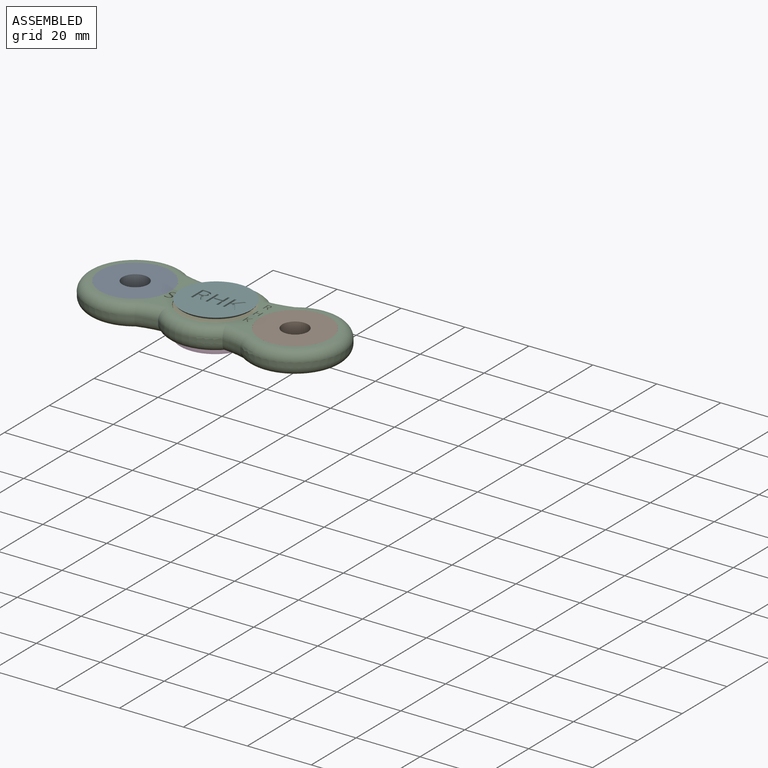
[diagram: assembled view]
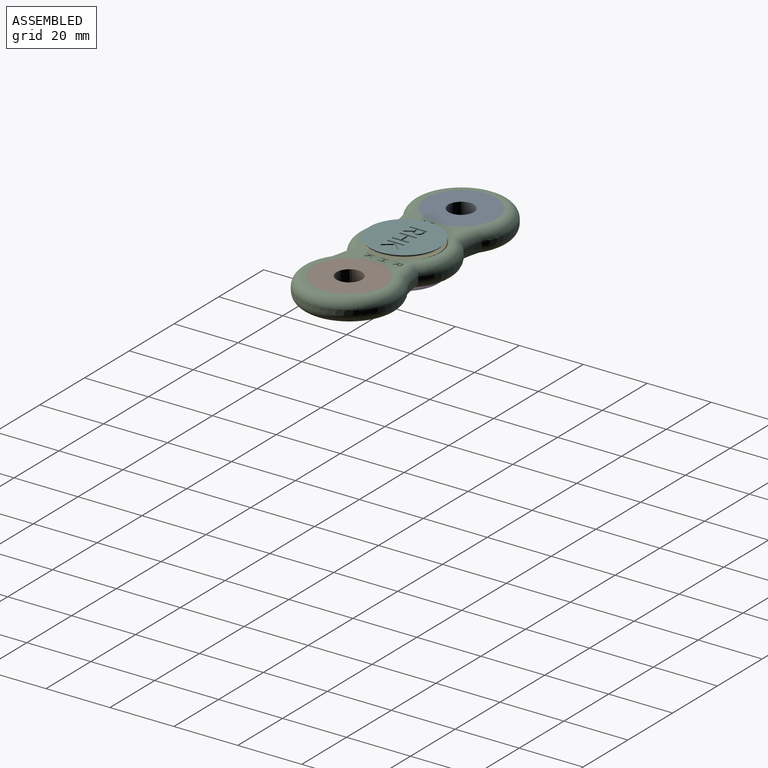
[diagram: assembled view, second angle]
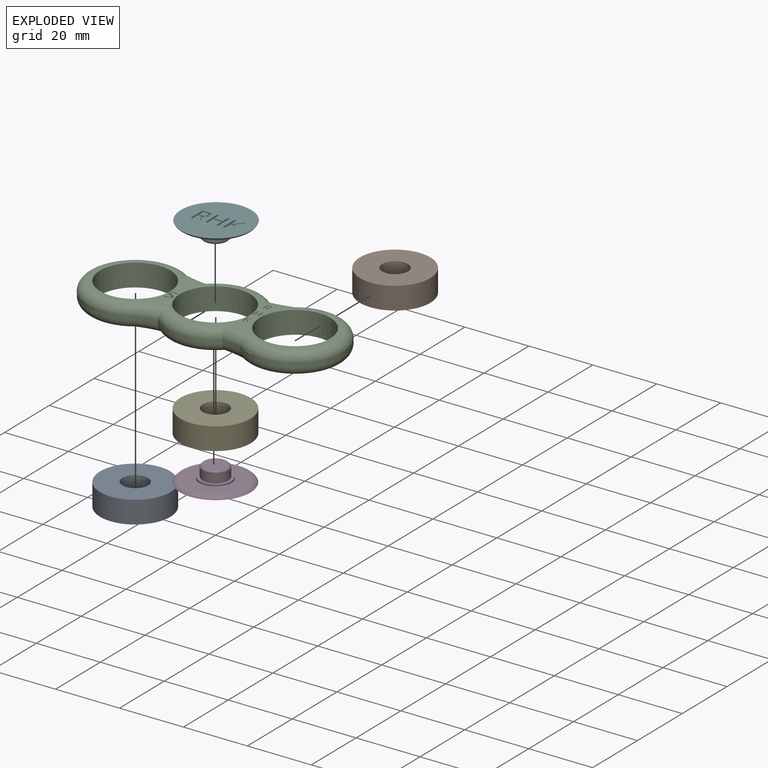
[diagram: exploded view]
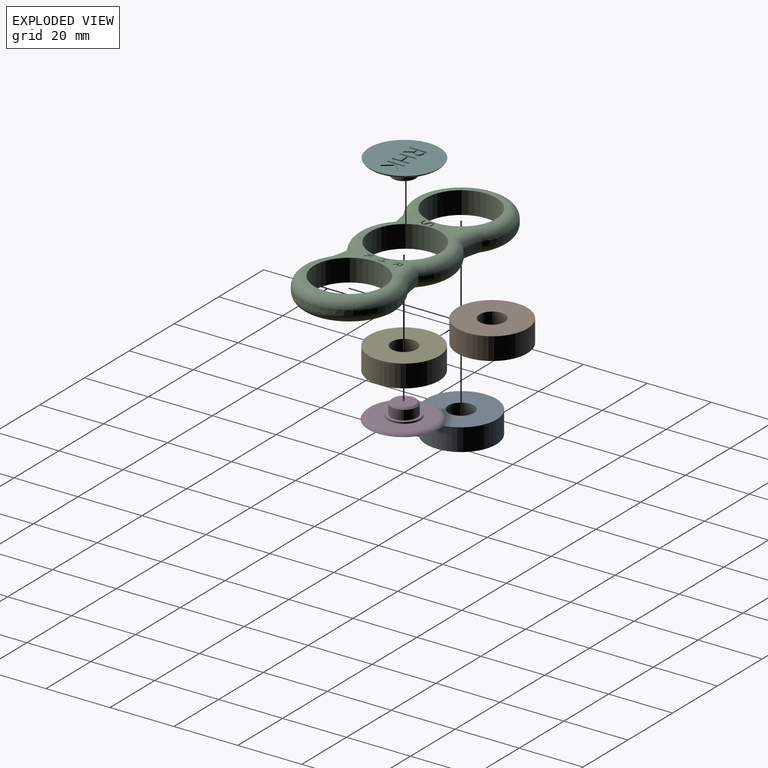
[diagram: exploded view, second angle]
ASSEMBLY  parts=6 mates=4
PART A: 4 faces, bbox 22x22x7 mm
  f0: cylinder r=4mm len=8mm, axis (0,0,-1), area 175.9mm2, adj f2,f3
  f1: cylinder r=11mm len=22mm, axis (0,0,-1), area 483.8mm2, adj f2,f3
  f2: plane 22x22mm, normal (0,0,1), area 329.9mm2, adj f0,f1
  f3: plane 22x22mm, normal (0,0,-1), area 329.9mm2, adj f0,f1
PART B: same geometry as A
PART C: 101 faces, bbox 82.5x32.5x7 mm
  f0: plane 74x24mm, normal (0,0,1), area 318.5mm2, adj f8,f9,f11,f21,f22,f23,f24,f25
  f1: cylinder r=35.11mm len=6.45mm, axis (0,0,-1), area 6.6mm2, adj f2,f10,f18,f22
  f2: cylinder r=15mm len=20.15mm, axis (0,0,-1), area 22.1mm2, adj f1,f3,f16,f24
  f3: cylinder r=35.11mm len=6.45mm, axis (0,0,-1), area 6.6mm2, adj f2,f4,f14,f26
  f4: cylinder r=15mm len=30mm, axis (0,0,-1), area 65.1mm2, adj f3,f5,f13,f28
  f5: cylinder r=35.11mm len=6.45mm, axis (0,0,-1), area 6.6mm2, adj f4,f6,f15,f27
  f6: cylinder r=15mm len=20.15mm, axis (0,0,-1), area 22.1mm2, adj f5,f7,f17,f25
  f7: cylinder r=35.11mm len=6.45mm, axis (0,0,-1), area 6.6mm2, adj f6,f10,f19,f23
  f8: cylinder r=11mm len=22mm, axis (0,0,-1), area 483.8mm2, adj f0,f12
  f9: cylinder r=11mm len=22mm, axis (0,0,-1), area 483.8mm2, adj f0,f12
  f10: cylinder r=15mm len=30mm, axis (0,0,-1), area 65.1mm2, adj f1,f7,f20,f21
  f11: cylinder r=11mm len=22mm, axis (0,0,-1), area 483.8mm2, adj f0,f12
  f12: plane 74x24mm, normal (0,0,-1), area 326.9mm2, adj f8,f9,f11,f13,f14,f15,f16,f17
  f13: torus R=12mm, axis (0,0,1), area 286.2mm2, adj f4,f12,f14,f15
  f14: torus R=38.11mm, axis (0,0,1), area 35.2mm2, adj f3,f12,f13,f16
  f15: torus R=38.11mm, axis (0,0,1), area 35.2mm2, adj f5,f12,f13,f17
  f16: torus R=12mm, axis (0,0,1), area 100.9mm2, adj f2,f12,f14,f18
  f17: torus R=12mm, axis (0,0,1), area 100.9mm2, adj f6,f12,f15,f19
  f18: torus R=38.11mm, axis (0,0,1), area 35.2mm2, adj f1,f12,f16,f20
  f19: torus R=38.11mm, axis (0,0,1), area 35.2mm2, adj f7,f12,f17,f20
  f20: torus R=12mm, axis (0,0,1), area 286.2mm2, adj f10,f12,f18,f19
  f21: torus R=12mm, axis (0,0,1), area 286.2mm2, adj f0,f10,f22,f23
  f22: torus R=38.11mm, axis (0,0,1), area 35.2mm2, adj f0,f1,f21,f24
  f23: torus R=38.11mm, axis (0,0,1), area 35.2mm2, adj f0,f7,f21,f25
  f24: torus R=12mm, axis (0,0,1), area 100.9mm2, adj f0,f2,f22,f26
  f25: torus R=12mm, axis (0,0,1), area 100.9mm2, adj f0,f6,f23,f27
  f26: torus R=38.11mm, axis (0,0,1), area 35.2mm2, adj f0,f3,f24,f28
  f27: torus R=38.11mm, axis (0,0,1), area 35.2mm2, adj f0,f5,f25,f28
  f28: torus R=12mm, axis (0,0,1), area 286.2mm2, adj f0,f4,f26,f27
  f29: plane 2.37x1mm, normal (-1,0,0), area 2.4mm2, adj f0,f30,f40,f41
  f30: plane 1x0.28mm, normal (0,-1,0), area 0.3mm2, adj f0,f29,f31,f41
  f31: plane 1.01x1mm, normal (1,0,0), area 1mm2, adj f0,f30,f32,f41
  f32: plane 1.25x1mm, normal (0,-1,0), area 1.2mm2, adj f0,f31,f33,f41
  f33: plane 1.01x1mm, normal (-1,0,0), area 1mm2, adj f0,f32,f34,f41
  f34: plane 1x0.28mm, normal (0,-1,0), area 0.3mm2, adj f0,f33,f35,f41
  f35: plane 2.37x1mm, normal (1,0,0), area 2.4mm2, adj f0,f34,f36,f41
  f36: plane 1x0.28mm, normal (0,1,0), area 0.3mm2, adj f0,f35,f37,f41
  f37: plane 1.11x1mm, normal (-1,0,0), area 1.1mm2, adj f0,f36,f38,f41
  f38: plane 1.25x1mm, normal (0,1,0), area 1.2mm2, adj f0,f37,f39,f41
  f39: plane 1.11x1mm, normal (1,0,0), area 1.1mm2, adj f0,f38,f40,f41
  f40: plane 1x0.28mm, normal (0,1,0), area 0.3mm2, adj f0,f29,f39,f41
  f41: plane 2.37x1.8mm, normal (0,0,1), area 1.6mm2, adj f29,f30,f31,f32,f33,f34,f35,f36
  f42: plane 1.34x1mm, normal (-0.8,-0.59,0), area 1.7mm2, adj f0,f43,f53,f54
  f43: plane 1.03x1mm, normal (-0.73,0.68,0), area 1.4mm2, adj f0,f42,f44,f54
  f44: plane 1x0.33mm, normal (0,-1,0), area 0.3mm2, adj f0,f43,f45,f54
  f45: plane 1.17x1.07mm, normal (0.74,-0.67,0), area 1.6mm2, adj f0,f44,f46,f54
  f46: plane 1.17x1mm, normal (-1,0,0), area 1.2mm2, adj f0,f45,f47,f54
  f47: plane 1x0.28mm, normal (0,-1,0), area 0.3mm2, adj f0,f46,f48,f54
  f48: plane 2.37x1mm, normal (1,0,0), area 2.4mm2, adj f0,f47,f49,f54
  f49: plane 1x0.28mm, normal (0,1,0), area 0.3mm2, adj f0,f48,f50,f54
  f50: plane 1x0.93mm, normal (-1,0,0), area 0.9mm2, adj f0,f49,f51,f54
  f51: plane 1x0.25mm, normal (-0.66,0.75,0), area 0.3mm2, adj f0,f50,f52,f54
  f52: plane 1.15x1mm, normal (0.8,0.6,0), area 1.4mm2, adj f0,f51,f53,f54
  f53: plane 1x0.32mm, normal (0,1,0), area 0.3mm2, adj f0,f42,f52,f54
  f54: plane 2.37x1.71mm, normal (0,0,1), area 1.5mm2, adj f42,f43,f44,f45,f46,f47,f48,f49
  f55: plane 1x0.49mm, normal (0,1,0), area 0.5mm2, adj f0,f56,f72,f73
  f56: plane 1x0.98mm, normal (0.86,0.5,0), area 1.1mm2, adj f0,f55,f57,f73
  f57: plane 1x0.33mm, normal (0,1,0), area 0.3mm2, adj f0,f56,f58,f73
  f58: plane 1.06x1mm, normal (-0.86,-0.52,0), area 1.2mm2, adj f0,f57,f59,f73
  f59: extruded ~1x0.63mm, area 0.9mm2, adj f0,f58,f60,f73
  f60: extruded ~1x0.5mm, area 0.6mm2, adj f0,f59,f61,f73
  f61: extruded ~1x0.64mm, area 0.7mm2, adj f0,f60,f62,f73
  f62: plane 1x0.65mm, normal (0,-1,0), area 0.6mm2, adj f0,f61,f63,f73
  f63: plane 2.37x1mm, normal (1,0,0), area 2.4mm2, adj f0,f62,f64,f73
  f64: plane 1x0.28mm, normal (0,1,0), area 0.3mm2, adj f0,f63,f72,f73
  f65: plane 1x0.9mm, normal (-1,0,0), area 0.9mm2, adj f66,f71,f73,f74
  f66: plane 1x0.36mm, normal (0,1,0), area 0.4mm2, adj f65,f67,f73,f74
  f67: extruded ~1x0.44mm, area 0.5mm2, adj f66,f68,f73,f74
  f68: extruded ~1x0.34mm, area 0.4mm2, adj f67,f69,f73,f74
  f69: extruded ~1x0.35mm, area 0.4mm2, adj f68,f70,f73,f74
  f70: extruded ~1x0.43mm, area 0.5mm2, adj f69,f71,f73,f74
  f71: plane 1x0.38mm, normal (0,-1,0), area 0.4mm2, adj f65,f70,f73,f74
  f72: plane 1x0.98mm, normal (-1,0,0), area 1mm2, adj f0,f55,f64,f73
  f73: plane 2.37x1.67mm, normal (0,0,1), area 1.7mm2, adj f55,f56,f57,f58,f59,f60,f61,f62
  f74: plane 0.94x0.9mm, normal (0,0,1), area 0.8mm2, adj f65,f66,f67,f68,f69,f70,f71
  f75: extruded ~2x0.59mm, area 1.3mm2, adj f0,f76,f99,f100
  f76: extruded ~2x0.76mm, area 1.8mm2, adj f0,f75,f77,f100
  f77: extruded ~2x0.49mm, area 1.1mm2, adj f0,f76,f78,f100
  f78: extruded ~2x0.23mm, area 0.6mm2, adj f0,f77,f79,f100
  f79: extruded ~2x0.3mm, area 0.6mm2, adj f0,f78,f80,f100
  f80: extruded ~2x0.39mm, area 0.9mm2, adj f0,f79,f81,f100
  f81: extruded ~2x0.51mm, area 1.1mm2, adj f0,f80,f82,f100
  f82: extruded ~2x0.85mm, area 1.7mm2, adj f0,f81,f83,f100
  f83: plane 2x0.36mm, normal (-0.94,0.34,0), area 0.8mm2, adj f0,f82,f84,f100
  f84: extruded ~2x0.96mm, area 2mm2, adj f0,f83,f85,f100
  f85: extruded ~2x0.81mm, area 1.7mm2, adj f0,f84,f86,f100
  f86: extruded ~2x0.65mm, area 1.5mm2, adj f0,f85,f87,f100
  f87: extruded ~2x0.63mm, area 1.4mm2, adj f0,f86,f88,f100
  f88: extruded ~2x0.7mm, area 1.6mm2, adj f0,f87,f89,f100
  f89: extruded ~2x0.52mm, area 1.1mm2, adj f0,f88,f90,f100
  f90: extruded ~2x0.25mm, area 0.7mm2, adj f0,f89,f91,f100
  f91: extruded ~2x0.3mm, area 0.6mm2, adj f0,f90,f92,f100
  f92: extruded ~2x0.43mm, area 1mm2, adj f0,f91,f93,f100
  f93: extruded ~2x0.62mm, area 1.3mm2, adj f0,f92,f94,f100
  f94: extruded ~2x0.5mm, area 1mm2, adj f0,f93,f95,f100
  f95: extruded ~2x0.47mm, area 1mm2, adj f0,f94,f96,f100
  f96: plane 2x0.39mm, normal (1,0,0), area 0.8mm2, adj f0,f95,f97,f100
  f97: extruded ~2x0.96mm, area 2mm2, adj f0,f96,f98,f100
  f98: extruded ~2x0.91mm, area 1.9mm2, adj f0,f97,f99,f100
  f99: extruded ~2x0.72mm, area 1.7mm2, adj f0,f75,f98,f100
  f100: plane 3.61x2.21mm, normal (0,0,1), area 2.9mm2, adj f75,f76,f77,f78,f79,f80,f81,f82
PART D: 54 faces, bbox 24.4x24.4x6 mm
  f0: plane 22x22mm, normal (0,0,-1), area 352.8mm2, adj f6,f8,f9,f10,f11,f12,f13,f14
  f1: plane 18.54x18.54mm, normal (0,0,1), area 191.3mm2, adj f2,f6
  f2: cylinder r=5mm len=10mm, axis (0,0,-1), area 15.7mm2, adj f1,f3
  f3: plane 10x10mm, normal (0,0,1), area 27mm2, adj f2,f4
  f4: cylinder r=4.05mm len=8.1mm, axis (0,0,-1), area 76.3mm2, adj f3,f7
  f5: plane 7.1x7.1mm, normal (0,0,1), area 39.6mm2, adj f7
  f6: torus R=9.27mm, axis (0,0,-1), area 134.5mm2, adj f0,f1
  f7: cone r=3.55mm half-angle=45deg, axis (0,0,-1), area 16.9mm2, adj f4,f5
  f8: plane 5.26x0.5mm, normal (-1,0,0), area 2.6mm2, adj f0,f9,f19,f20
  f9: plane 0.61x0.5mm, normal (0,1,0), area 0.3mm2, adj f0,f8,f10,f20
  f10: plane 2.24x0.5mm, normal (1,0,0), area 1.1mm2, adj f0,f9,f11,f20
  f11: plane 2.77x0.5mm, normal (0,1,0), area 1.4mm2, adj f0,f10,f12,f20
  f12: plane 2.24x0.5mm, normal (-1,0,0), area 1.1mm2, adj f0,f11,f13,f20
  f13: plane 0.61x0.5mm, normal (0,1,0), area 0.3mm2, adj f0,f12,f14,f20
  f14: plane 5.26x0.5mm, normal (1,0,0), area 2.6mm2, adj f0,f13,f15,f20
  f15: plane 0.61x0.5mm, normal (0,-1,0), area 0.3mm2, adj f0,f14,f16,f20
  f16: plane 2.48x0.5mm, normal (-1,0,0), area 1.2mm2, adj f0,f15,f17,f20
  f17: plane 2.77x0.5mm, normal (0,-1,0), area 1.4mm2, adj f0,f16,f18,f20
  f18: plane 2.48x0.5mm, normal (1,0,0), area 1.2mm2, adj f0,f17,f19,f20
  f19: plane 0.61x0.5mm, normal (0,-1,0), area 0.3mm2, adj f0,f8,f18,f20
  f20: plane 5.26x4mm, normal (0,0,-1), area 8mm2, adj f8,f9,f10,f11,f12,f13,f14,f15
  f21: plane 2.98x2.2mm, normal (-0.8,0.59,0), area 1.8mm2, adj f0,f22,f32,f33
  f22: plane 2.29x2.12mm, normal (-0.73,-0.68,0), area 1.6mm2, adj f0,f21,f23,f33
  f23: plane 0.72x0.5mm, normal (0,1,0), area 0.4mm2, adj f0,f22,f24,f33
  f24: plane 2.61x2.39mm, normal (0.74,0.67,0), area 1.8mm2, adj f0,f23,f25,f33
  f25: plane 2.61x0.5mm, normal (-1,0,0), area 1.3mm2, adj f0,f24,f26,f33
  f26: plane 0.61x0.5mm, normal (0,1,0), area 0.3mm2, adj f0,f25,f27,f33
  f27: plane 5.26x0.5mm, normal (1,0,0), area 2.6mm2, adj f0,f26,f28,f33
  f28: plane 0.61x0.5mm, normal (0,-1,0), area 0.3mm2, adj f0,f27,f29,f33
  f29: plane 2.06x0.5mm, normal (-1,0,0), area 1mm2, adj f0,f28,f30,f33
  f30: plane 0.55x0.5mm, normal (-0.66,-0.75,0), area 0.4mm2, adj f0,f29,f31,f33
  f31: plane 2.55x1.92mm, normal (0.8,-0.6,0), area 1.6mm2, adj f0,f30,f32,f33
  f32: plane 0.72x0.5mm, normal (0,-1,0), area 0.4mm2, adj f0,f21,f31,f33
  f33: plane 5.26x3.8mm, normal (0,0,-1), area 7.3mm2, adj f21,f22,f23,f24,f25,f26,f27,f28
  f34: plane 1.1x0.5mm, normal (0,-1,0), area 0.5mm2, adj f0,f35,f51,f52
  f35: plane 2.19x1.27mm, normal (0.86,-0.5,0), area 1.3mm2, adj f0,f34,f36,f52
  f36: plane 0.72x0.5mm, normal (0,-1,0), area 0.4mm2, adj f0,f35,f37,f52
  f37: plane 2.37x1.43mm, normal (-0.86,0.52,0), area 1.4mm2, adj f0,f36,f38,f52
  f38: extruded ~1.41x1.06mm, area 1mm2, adj f0,f37,f39,f52
  f39: extruded ~1.12x0.5mm, area 0.6mm2, adj f0,f38,f40,f52
  f40: extruded ~1.43x0.5mm, area 0.8mm2, adj f0,f39,f41,f52
  f41: plane 1.44x0.5mm, normal (0,1,0), area 0.7mm2, adj f0,f40,f42,f52
  f42: plane 5.26x0.5mm, normal (1,0,0), area 2.6mm2, adj f0,f41,f43,f52
  f43: plane 0.61x0.5mm, normal (0,-1,0), area 0.3mm2, adj f0,f42,f51,f52
  f44: plane 2.01x0.5mm, normal (-1,0,0), area 1mm2, adj f45,f50,f52,f53
  f45: plane 0.8x0.5mm, normal (0,-1,0), area 0.4mm2, adj f44,f46,f52,f53
  f46: extruded ~0.99x0.5mm, area 0.5mm2, adj f45,f47,f52,f53
  f47: extruded ~0.75x0.5mm, area 0.4mm2, adj f46,f48,f52,f53
  f48: extruded ~0.77x0.5mm, area 0.4mm2, adj f47,f49,f52,f53
  f49: extruded ~0.95x0.5mm, area 0.5mm2, adj f48,f50,f52,f53
  f50: plane 0.84x0.5mm, normal (0,1,0), area 0.4mm2, adj f44,f49,f52,f53
  f51: plane 2.19x0.5mm, normal (-1,0,0), area 1.1mm2, adj f0,f34,f43,f52
  f52: plane 5.26x3.71mm, normal (0,0,-1), area 8.3mm2, adj f34,f35,f36,f37,f38,f39,f40,f41
  f53: plane 2.09x2.01mm, normal (0,0,-1), area 3.8mm2, adj f44,f45,f46,f47,f48,f49,f50
PART E: same geometry as A
PART F: same geometry as D
PLACE A t=(-25.23,0.2,-1.09)mm
PLACE B t=(24.77,0.2,-1.09)mm
PLACE C t=(-0.23,0.2,-1.09)mm
PLACE D t=(0,0,-2.8)mm
PLACE E t=(0,0,-1.09)mm
PLACE F rot(axis=(1,0,0),180deg) t=(0,0,7.41)mm
MATE cylindrical E.f0 <-> F.f2  axis (0,0,1) through (0,0,5.91)mm
MATE slider B.f0 <-> C.f10  axis (0,0,-1) through (24.77,0.2,-1.09)mm
MATE cylindrical D.f2 <-> E.f0  axis (0,0,1) through (0,0,2.2)mm
MATE slider A.f0 <-> C.f4  axis (0,0,-1) through (-25.23,0.2,-1.09)mm
